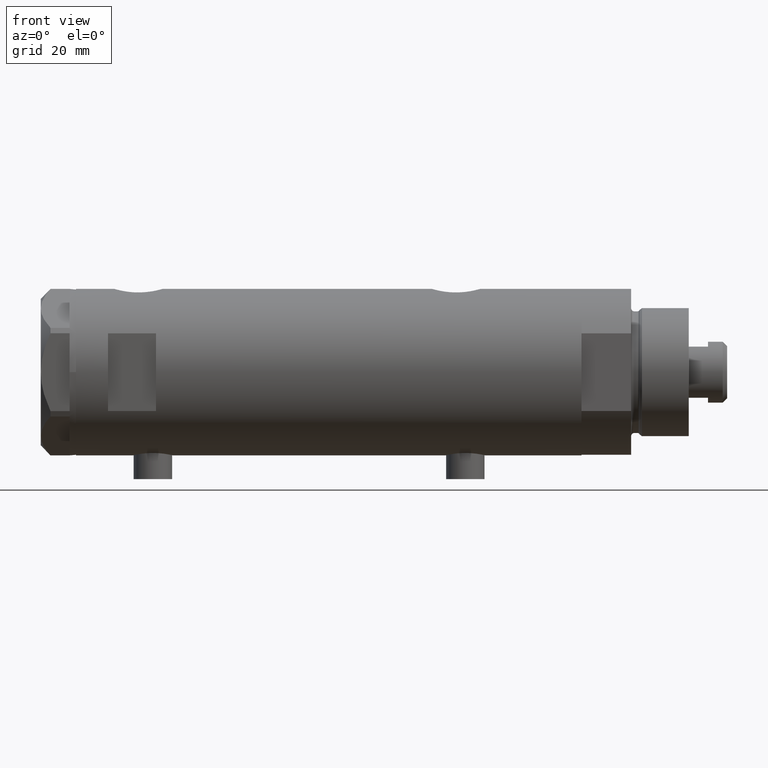
[diagram: clean part render]
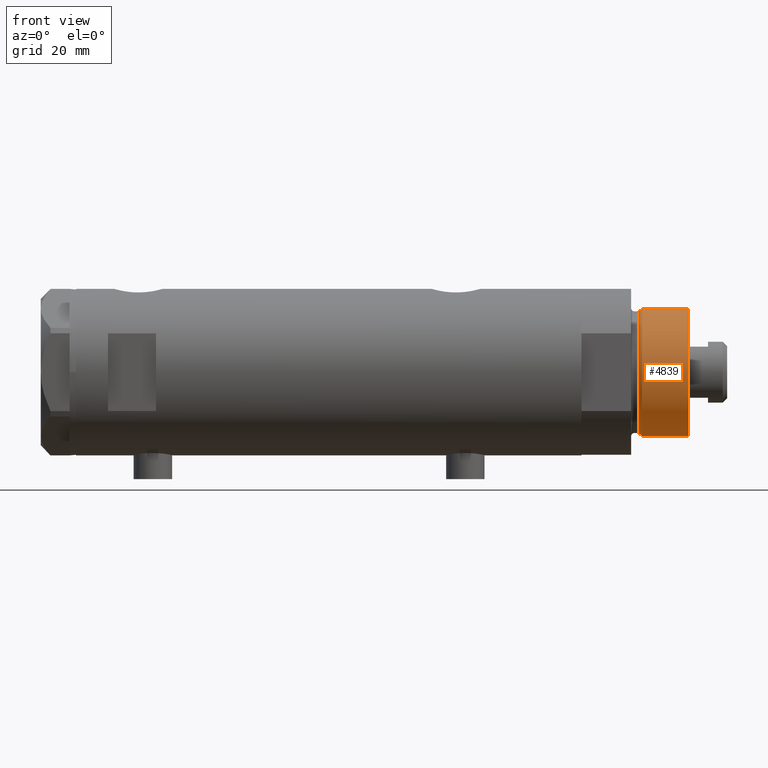
[diagram: same view with one face highlighted and labeled with its STEP entity id]
A machine part, front view. The second image highlights one B-rep face of the part: STEP entity #4839.
In plain terms, the highlighted cylindrical surface (partial cylindrical patch) has radius 20 mm, axis along (-1, -0, 0).
Its self-contained STEP definition (entity closure, byte-faithful):
#132 = CIRCLE ( 'NONE', #4133, 19.99999999999999645 ) ;
#492 = EDGE_CURVE ( 'NONE', #4516, #1845, #3345, .T. ) ;
#531 = DIRECTION ( 'NONE',  ( -1.000000000000000000, 0.000000000000000000, 0.000000000000000000 ) ) ;
#784 = AXIS2_PLACEMENT_3D ( 'NONE', #4630, #1318, #531 ) ;
#1252 = CARTESIAN_POINT ( 'NONE',  ( 19.99999999999999645, 2.449293598294706119E-15, 33.50000000000000000 ) ) ;
#1309 = DIRECTION ( 'NONE',  ( 1.000000000000000000, 0.000000000000000000, 0.000000000000000000 ) ) ;
#1318 = DIRECTION ( 'NONE',  ( -0.000000000000000000, -0.000000000000000000, -1.000000000000000000 ) ) ;
#1801 = DIRECTION ( 'NONE',  ( 0.000000000000000000, 0.000000000000000000, 1.000000000000000000 ) ) ;
#1845 = VERTEX_POINT ( 'NONE', #4463 ) ;
#1947 = CARTESIAN_POINT ( 'NONE',  ( 0.000000000000000000, 0.000000000000000000, 18.87384048104053846 ) ) ;
#2015 = FACE_OUTER_BOUND ( 'NONE', #3697, .T. ) ;
#2041 = ORIENTED_EDGE ( 'NONE', *, *, #492, .T. ) ;
#2094 = VERTEX_POINT ( 'NONE', #2728 ) ;
#2112 = AXIS2_PLACEMENT_3D ( 'NONE', #1947, #3436, #1309 ) ;
#2321 = EDGE_CURVE ( 'NONE', #3112, #2094, #132, .T. ) ;
#2376 = LINE ( 'NONE', #3155, #4849 ) ;
#2613 = ORIENTED_EDGE ( 'NONE', *, *, #2821, .F. ) ;
#2728 = CARTESIAN_POINT ( 'NONE',  ( 19.99999999999999645, 2.449293598294706119E-15, 33.50000000000000000 ) ) ;
#2821 = EDGE_CURVE ( 'NONE', #2094, #1845, #3830, .T. ) ;
#2838 = EDGE_CURVE ( 'NONE', #3112, #4516, #2376, .T. ) ;
#3112 = VERTEX_POINT ( 'NONE', #4304 ) ;
#3119 = ORIENTED_EDGE ( 'NONE', *, *, #2838, .T. ) ;
#3155 = CARTESIAN_POINT ( 'NONE',  ( -19.99999999999999645, 0.000000000000000000, 33.50000000000000000 ) ) ;
#3188 = CARTESIAN_POINT ( 'NONE',  ( -19.99999999999999645, 0.000000000000000000, 18.87384048104053846 ) ) ;
#3345 = CIRCLE ( 'NONE', #2112, 19.99999999999999645 ) ;
#3436 = DIRECTION ( 'NONE',  ( -0.000000000000000000, -0.000000000000000000, 1.000000000000000000 ) ) ;
#3459 = DIRECTION ( 'NONE',  ( -0.000000000000000000, -0.000000000000000000, -1.000000000000000000 ) ) ;
#3498 = CYLINDRICAL_SURFACE ( 'NONE', #784, 19.99999999999999645 ) ;
#3544 = DIRECTION ( 'NONE',  ( -0.000000000000000000, -0.000000000000000000, -1.000000000000000000 ) ) ;
#3697 = EDGE_LOOP ( 'NONE', ( #2613, #4181, #3119, #2041 ) ) ;
#3830 = LINE ( 'NONE', #1252, #4702 ) ;
#4133 = AXIS2_PLACEMENT_3D ( 'NONE', #4741, #1801, #4769 ) ;
#4181 = ORIENTED_EDGE ( 'NONE', *, *, #2321, .F. ) ;
#4304 = CARTESIAN_POINT ( 'NONE',  ( -19.99999999999999645, 0.000000000000000000, 33.50000000000000000 ) ) ;
#4463 = CARTESIAN_POINT ( 'NONE',  ( 19.99999999999999645, 2.449293598294706119E-15, 18.87384048104053846 ) ) ;
#4516 = VERTEX_POINT ( 'NONE', #3188 ) ;
#4630 = CARTESIAN_POINT ( 'NONE',  ( 0.000000000000000000, 0.000000000000000000, 33.50000000000000000 ) ) ;
#4702 = VECTOR ( 'NONE', #3544, 1000.000000000000000 ) ;
#4741 = CARTESIAN_POINT ( 'NONE',  ( 0.000000000000000000, 0.000000000000000000, 33.50000000000000000 ) ) ;
#4769 = DIRECTION ( 'NONE',  ( 1.000000000000000000, 0.000000000000000000, 0.000000000000000000 ) ) ;
#4839 = ADVANCED_FACE ( 'NONE', ( #2015 ), #3498, .T. ) ;
#4849 = VECTOR ( 'NONE', #3459, 1000.000000000000000 ) ;